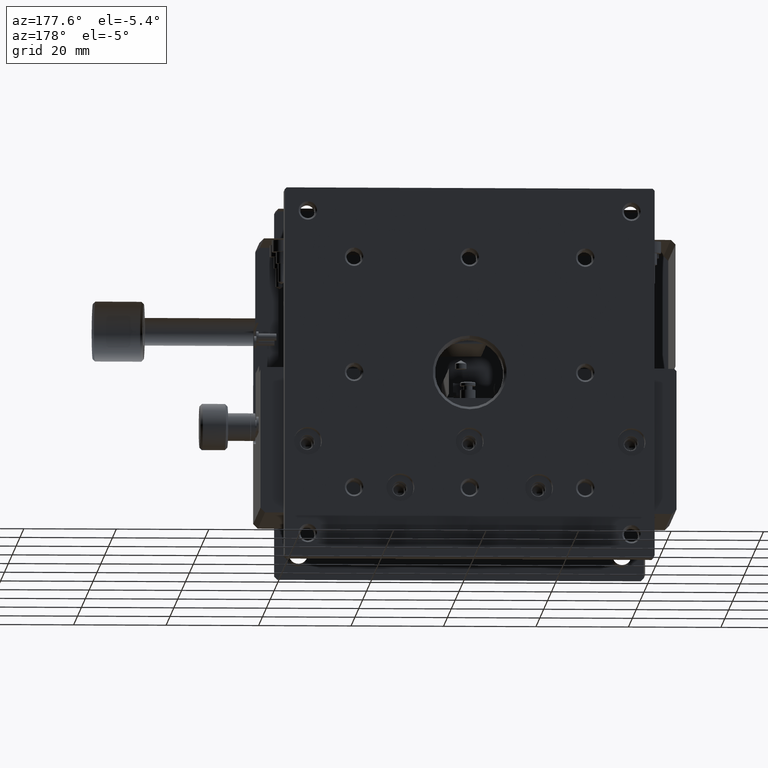
[diagram: clean part render]
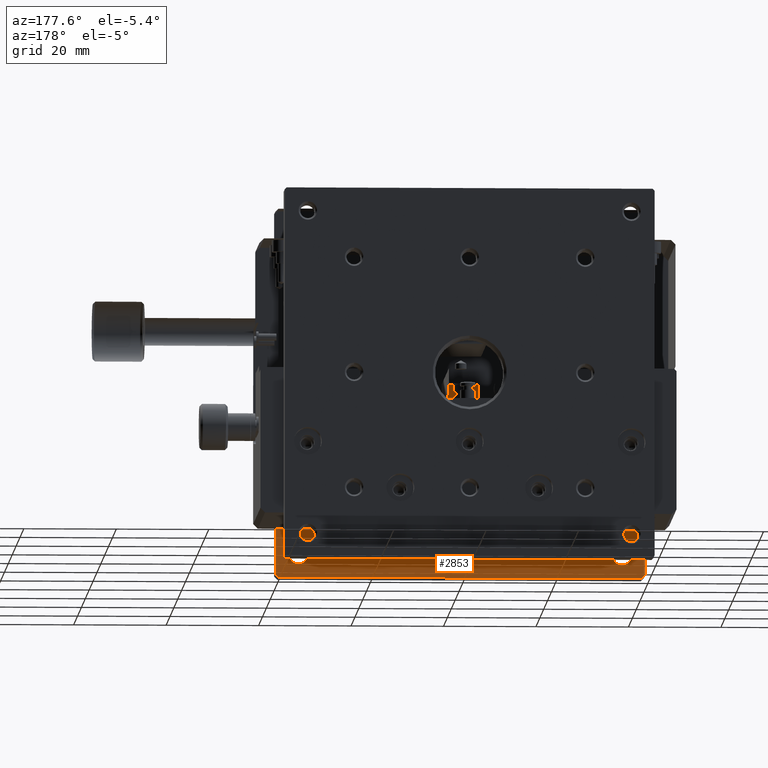
[diagram: same view with one face highlighted and labeled with its STEP entity id]
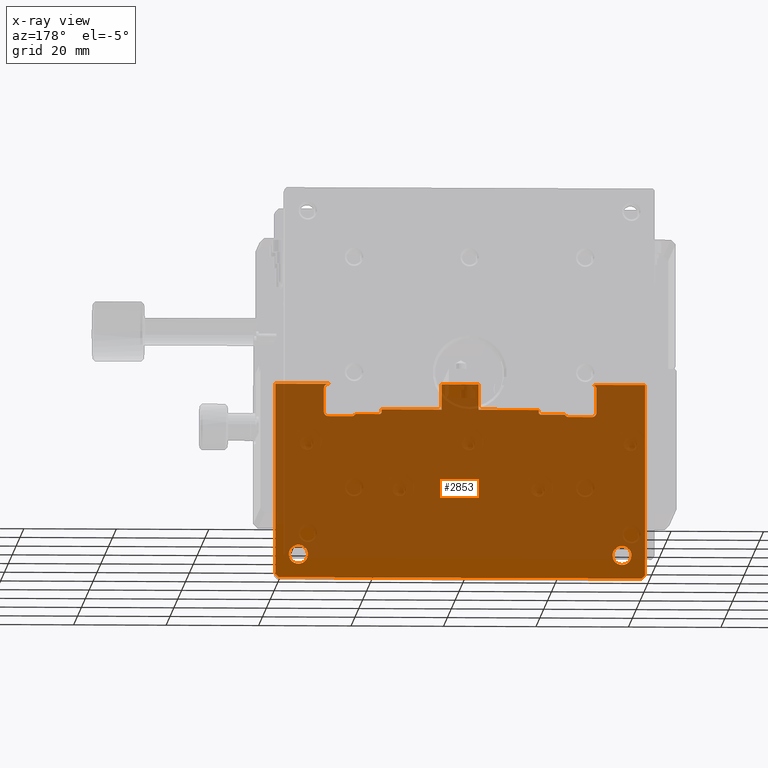
[diagram: x-ray of the same camera — body ghosted, the highlighted face saturated]
A machine part, auxiliary view. The second image highlights one B-rep face of the part: STEP entity #2853.
The next image is the same camera in x-ray: the body ghosted, the highlighted face saturated — about 88% of this face is hidden behind the body in this view.
In plain terms, the highlighted planar face has unit normal (0, 1, 0).
Its self-contained STEP definition (entity closure, byte-faithful):
#91 = CARTESIAN_POINT ( 'NONE',  ( 57.00000000000000000, 5.999999999999998224, -43.50000000000000711 ) ) ;
#101 = VECTOR ( 'NONE', #9984, 1000.000000000000000 ) ;
#146 = VERTEX_POINT ( 'NONE', #10381 ) ;
#200 = CARTESIAN_POINT ( 'NONE',  ( 57.29999999999999716, 5.999999999999998224, -44.49999999999990052 ) ) ;
#221 = DIRECTION ( 'NONE',  ( -0.000000000000000000, -1.000000000000000000, -0.000000000000000000 ) ) ;
#271 = VECTOR ( 'NONE', #11926, 1000.000000000000000 ) ;
#355 = ORIENTED_EDGE ( 'NONE', *, *, #5029, .F. ) ;
#358 = EDGE_CURVE ( 'NONE', #1120, #12012, #11424, .T. ) ;
#385 = CARTESIAN_POINT ( 'NONE',  ( 0.000000000000000000, 6.000000000000000000, -44.49999999999990052 ) ) ;
#395 = CARTESIAN_POINT ( 'NONE',  ( -1.897353801849632760E-16, 6.000000000000000000, -79.29000000000000625 ) ) ;
#409 = ORIENTED_EDGE ( 'NONE', *, *, #5274, .F. ) ;
#417 = VECTOR ( 'NONE', #1561, 1000.000000000000000 ) ;
#542 = LINE ( 'NONE', #9878, #417 ) ;
#556 = CARTESIAN_POINT ( 'NONE',  ( 0.000000000000000000, 6.000000000000000000, -38.00000000000000000 ) ) ;
#585 = DIRECTION ( 'NONE',  ( 0.000000000000000000, 0.000000000000000000, 1.000000000000000000 ) ) ;
#593 = DIRECTION ( 'NONE',  ( -0.000000000000000000, -0.000000000000000000, -1.000000000000000000 ) ) ;
#627 = VECTOR ( 'NONE', #10394, 1000.000000000000000 ) ;
#663 = DIRECTION ( 'NONE',  ( -0.000000000000000000, -0.000000000000000000, 1.000000000000000000 ) ) ;
#684 = CARTESIAN_POINT ( 'NONE',  ( 10.50000000000000000, 6.000000000000000000, 0.000000000000000000 ) ) ;
#718 = EDGE_CURVE ( 'NONE', #11463, #2818, #10713, .T. ) ;
#729 = LINE ( 'NONE', #2605, #10311 ) ;
#739 = ORIENTED_EDGE ( 'NONE', *, *, #7864, .F. ) ;
#770 = VERTEX_POINT ( 'NONE', #1884 ) ;
#865 = ORIENTED_EDGE ( 'NONE', *, *, #9838, .F. ) ;
#925 = DIRECTION ( 'NONE',  ( 0.000000000000000000, -1.000000000000000000, 0.000000000000000000 ) ) ;
#949 = VERTEX_POINT ( 'NONE', #91 ) ;
#957 = EDGE_CURVE ( 'NONE', #11557, #6539, #2119, .T. ) ;
#976 = LINE ( 'NONE', #3095, #1866 ) ;
#1120 = VERTEX_POINT ( 'NONE', #6941 ) ;
#1211 = VECTOR ( 'NONE', #6541, 1000.000000000000000 ) ;
#1254 = ORIENTED_EDGE ( 'NONE', *, *, #10223, .F. ) ;
#1383 = VECTOR ( 'NONE', #6995, 1000.000000000000000 ) ;
#1384 = CARTESIAN_POINT ( 'NONE',  ( 17.36602540378449788, 6.000000000000000000, -44.49999999999990052 ) ) ;
#1435 = ORIENTED_EDGE ( 'NONE', *, *, #5412, .F. ) ;
#1439 = FACE_BOUND ( 'NONE', #1449, .T. ) ;
#1449 = EDGE_LOOP ( 'NONE', ( #3501 ) ) ;
#1496 = CARTESIAN_POINT ( 'NONE',  ( 11.50000000000000000, 6.000000000000000000, -38.00000000000000000 ) ) ;
#1559 = CARTESIAN_POINT ( 'NONE',  ( 0.000000000000000000, 6.000000000000000000, -79.29000000000000625 ) ) ;
#1561 = DIRECTION ( 'NONE',  ( 1.000000000000000000, 0.000000000000000000, -0.000000000000000000 ) ) ;
#1570 = VERTEX_POINT ( 'NONE', #1384 ) ;
#1597 = AXIS2_PLACEMENT_3D ( 'NONE', #2343, #3510, #6195 ) ;
#1634 = DIRECTION ( 'NONE',  ( 1.000000000000000000, 0.000000000000000000, -0.000000000000000000 ) ) ;
#1641 = LINE ( 'NONE', #684, #1383 ) ;
#1669 = VERTEX_POINT ( 'NONE', #11049 ) ;
#1708 = CIRCLE ( 'NONE', #6570, 0.9999999999999870104 ) ;
#1715 = ORIENTED_EDGE ( 'NONE', *, *, #718, .F. ) ;
#1773 = VECTOR ( 'NONE', #6138, 1000.000000000000000 ) ;
#1788 = CARTESIAN_POINT ( 'NONE',  ( 68.50000000000000000, 6.000000000000000000, -45.00000000000000000 ) ) ;
#1822 = ORIENTED_EDGE ( 'NONE', *, *, #5594, .F. ) ;
#1866 = VECTOR ( 'NONE', #3037, 1000.000000000000000 ) ;
#1884 = CARTESIAN_POINT ( 'NONE',  ( 57.00000000000002842, 5.999999999999998224, -44.19999999999998153 ) ) ;
#1894 = CIRCLE ( 'NONE', #5222, 2.066999999999999282 ) ;
#1948 = CARTESIAN_POINT ( 'NONE',  ( 68.50000000000000000, 6.000000000000000000, -39.00000000000000000 ) ) ;
#1960 = VERTEX_POINT ( 'NONE', #2141 ) ;
#2112 = EDGE_CURVE ( 'NONE', #6045, #1960, #7086, .T. ) ;
#2119 = LINE ( 'NONE', #9536, #627 ) ;
#2141 = CARTESIAN_POINT ( 'NONE',  ( 44.00000000000000000, 5.999999999999998224, -43.50000000000000711 ) ) ;
#2160 = AXIS2_PLACEMENT_3D ( 'NONE', #10554, #3393, #11536 ) ;
#2343 = CARTESIAN_POINT ( 'NONE',  ( 16.50000000000000000, 6.000000000000000000, -44.00000000000000000 ) ) ;
#2361 = CARTESIAN_POINT ( 'NONE',  ( 75.00000000000000000, 6.000000000000000000, -77.06699999999999307 ) ) ;
#2382 = VECTOR ( 'NONE', #11552, 1000.000000000000000 ) ;
#2441 = VERTEX_POINT ( 'NONE', #8873 ) ;
#2499 = EDGE_CURVE ( 'NONE', #10087, #3604, #7832, .T. ) ;
#2603 = EDGE_CURVE ( 'NONE', #11819, #11463, #729, .T. ) ;
#2605 = CARTESIAN_POINT ( 'NONE',  ( 23.00000000000000000, 5.999999999999998224, -38.80000000000000426 ) ) ;
#2642 = DIRECTION ( 'NONE',  ( -0.7071067811865543451, 0.000000000000000000, 0.7071067811865408004 ) ) ;
#2674 = DIRECTION ( 'NONE',  ( 0.000000000000000000, 0.000000000000000000, -1.000000000000000000 ) ) ;
#2718 = CARTESIAN_POINT ( 'NONE',  ( 80.00000000000000000, 6.000000000000000000, -38.00000000000000000 ) ) ;
#2756 = CARTESIAN_POINT ( 'NONE',  ( 0.000000000000000000, 6.000000000000000000, -43.50000000000000711 ) ) ;
#2818 = VERTEX_POINT ( 'NONE', #7038 ) ;
#2853 = ADVANCED_FACE ( 'NONE', ( #6861, #1439, #7873 ), #10609, .F. ) ;
#2900 = DIRECTION ( 'NONE',  ( 0.000000000000000000, 0.000000000000000000, 1.000000000000000000 ) ) ;
#2918 = VERTEX_POINT ( 'NONE', #9134 ) ;
#2934 = ORIENTED_EDGE ( 'NONE', *, *, #358, .F. ) ;
#2988 = VECTOR ( 'NONE', #663, 1000.000000000000000 ) ;
#3016 = CARTESIAN_POINT ( 'NONE',  ( 57.00000000000000000, 5.999999999999998224, -44.20000000000000284 ) ) ;
#3037 = DIRECTION ( 'NONE',  ( 1.000000000000000000, 0.000000000000000000, -0.000000000000000000 ) ) ;
#3084 = CARTESIAN_POINT ( 'NONE',  ( 0.000000000000000000, 6.000000000000000000, -45.00000000000000000 ) ) ;
#3095 = CARTESIAN_POINT ( 'NONE',  ( 0.000000000000000000, 6.000000000000000000, -38.00000000000000000 ) ) ;
#3175 = DIRECTION ( 'NONE',  ( 1.000000000000000000, 0.000000000000000000, -0.000000000000000000 ) ) ;
#3317 = LINE ( 'NONE', #9935, #9655 ) ;
#3326 = VECTOR ( 'NONE', #5405, 1000.000000000000114 ) ;
#3393 = DIRECTION ( 'NONE',  ( 0.000000000000000000, 1.000000000000000000, 0.000000000000000000 ) ) ;
#3403 = CARTESIAN_POINT ( 'NONE',  ( 80.00000000000000000, 6.000000000000000000, -79.29000000000000625 ) ) ;
#3442 = ORIENTED_EDGE ( 'NONE', *, *, #4882, .F. ) ;
#3501 = ORIENTED_EDGE ( 'NONE', *, *, #10281, .F. ) ;
#3510 = DIRECTION ( 'NONE',  ( -0.000000000000000000, -1.000000000000000000, -0.000000000000000000 ) ) ;
#3552 = EDGE_CURVE ( 'NONE', #11409, #5529, #8243, .T. ) ;
#3563 = ORIENTED_EDGE ( 'NONE', *, *, #2603, .F. ) ;
#3604 = VERTEX_POINT ( 'NONE', #1496 ) ;
#3609 = VERTEX_POINT ( 'NONE', #11649 ) ;
#3620 = LINE ( 'NONE', #9304, #1211 ) ;
#3776 = DIRECTION ( 'NONE',  ( 0.000000000000000000, 0.000000000000000000, 1.000000000000000000 ) ) ;
#3835 = CARTESIAN_POINT ( 'NONE',  ( 63.50000000000000000, 6.000000000000000000, -45.00000000000000000 ) ) ;
#3870 = DIRECTION ( 'NONE',  ( 0.000000000000000000, 0.000000000000000000, -1.000000000000000000 ) ) ;
#3959 = CARTESIAN_POINT ( 'NONE',  ( 22.70000000000001350, 5.999999999999998224, -44.49999999999990763 ) ) ;
#4059 = DIRECTION ( 'NONE',  ( -0.000000000000000000, -1.000000000000000000, -0.000000000000000000 ) ) ;
#4107 = LINE ( 'NONE', #3016, #6073 ) ;
#4139 = EDGE_CURVE ( 'NONE', #6539, #11409, #9237, .T. ) ;
#4185 = CARTESIAN_POINT ( 'NONE',  ( 23.00000000000000000, 5.999999999999998224, -44.20000000000000284 ) ) ;
#4186 = EDGE_CURVE ( 'NONE', #2918, #7667, #976, .T. ) ;
#4369 = EDGE_CURVE ( 'NONE', #2818, #10646, #7946, .T. ) ;
#4474 = CARTESIAN_POINT ( 'NONE',  ( 0.7100000000000019629, 6.000000000000000000, -80.00000000000000000 ) ) ;
#4518 = CIRCLE ( 'NONE', #10723, 1.000000000000007772 ) ;
#4524 = CARTESIAN_POINT ( 'NONE',  ( 44.00000000000000000, 6.000000000000000000, 0.000000000000000000 ) ) ;
#4652 = DIRECTION ( 'NONE',  ( 1.000000000000000000, 0.000000000000000000, -0.000000000000000000 ) ) ;
#4701 = ORIENTED_EDGE ( 'NONE', *, *, #10574, .F. ) ;
#4809 = VECTOR ( 'NONE', #10432, 1000.000000000000000 ) ;
#4837 = VECTOR ( 'NONE', #4652, 1000.000000000000000 ) ;
#4867 = CARTESIAN_POINT ( 'NONE',  ( 57.29999999999999716, 5.999999999999998224, -44.49999999999990052 ) ) ;
#4882 = EDGE_CURVE ( 'NONE', #8591, #5690, #11777, .T. ) ;
#5029 = EDGE_CURVE ( 'NONE', #5529, #1669, #1708, .T. ) ;
#5111 = EDGE_LOOP ( 'NONE', ( #355, #10365, #7680, #5546, #7630, #9371, #1822, #8254, #10710, #5451, #1715, #3563, #739, #7373, #10794, #6153, #5256, #5297, #8131, #5744, #4701, #3442, #9843, #2934, #1435, #11019, #865, #1254 ) ) ;
#5222 = AXIS2_PLACEMENT_3D ( 'NONE', #7747, #11285, #11467 ) ;
#5256 = ORIENTED_EDGE ( 'NONE', *, *, #11911, .F. ) ;
#5265 = CARTESIAN_POINT ( 'NONE',  ( 11.50000000000000000, 6.000000000000000000, -39.00000000000000000 ) ) ;
#5274 = EDGE_CURVE ( 'NONE', #2441, #2441, #1894, .T. ) ;
#5297 = ORIENTED_EDGE ( 'NONE', *, *, #7408, .F. ) ;
#5405 = DIRECTION ( 'NONE',  ( -0.7071067811865474617, 0.000000000000000000, -0.7071067811865474617 ) ) ;
#5412 = EDGE_CURVE ( 'NONE', #7667, #1120, #3317, .T. ) ;
#5451 = ORIENTED_EDGE ( 'NONE', *, *, #4369, .F. ) ;
#5529 = VERTEX_POINT ( 'NONE', #1788 ) ;
#5546 = ORIENTED_EDGE ( 'NONE', *, *, #957, .F. ) ;
#5594 = EDGE_CURVE ( 'NONE', #1960, #949, #10228, .T. ) ;
#5690 = VERTEX_POINT ( 'NONE', #395 ) ;
#5744 = ORIENTED_EDGE ( 'NONE', *, *, #2499, .F. ) ;
#5804 = CARTESIAN_POINT ( 'NONE',  ( 0.7100000000000002975, 6.000000000000000000, -80.00000000000000000 ) ) ;
#5953 = VECTOR ( 'NONE', #8504, 1000.000000000000000 ) ;
#5978 = VECTOR ( 'NONE', #2642, 1000.000000000000114 ) ;
#5982 = DIRECTION ( 'NONE',  ( 1.000000000000000000, 0.000000000000000000, -0.000000000000000000 ) ) ;
#6036 = CARTESIAN_POINT ( 'NONE',  ( 0.000000000000000000, 6.000000000000000000, -38.00000000000000000 ) ) ;
#6045 = VERTEX_POINT ( 'NONE', #8562 ) ;
#6073 = VECTOR ( 'NONE', #3870, 1000.000000000000000 ) ;
#6103 = EDGE_CURVE ( 'NONE', #770, #11557, #10395, .T. ) ;
#6138 = DIRECTION ( 'NONE',  ( 0.7071067811865840991, 0.000000000000000000, 0.7071067811865110464 ) ) ;
#6153 = ORIENTED_EDGE ( 'NONE', *, *, #11935, .F. ) ;
#6195 = DIRECTION ( 'NONE',  ( 6.938893903907222067E-15, 0.000000000000000000, 1.000000000000000000 ) ) ;
#6278 = VECTOR ( 'NONE', #3175, 1000.000000000000000 ) ;
#6477 = AXIS2_PLACEMENT_3D ( 'NONE', #1948, #8331, #9242 ) ;
#6539 = VERTEX_POINT ( 'NONE', #11726 ) ;
#6541 = DIRECTION ( 'NONE',  ( -1.000000000000000000, -0.000000000000000000, 0.000000000000000000 ) ) ;
#6570 = AXIS2_PLACEMENT_3D ( 'NONE', #10233, #221, #11342 ) ;
#6591 = EDGE_CURVE ( 'NONE', #10646, #6045, #542, .T. ) ;
#6660 = EDGE_LOOP ( 'NONE', ( #409 ) ) ;
#6741 = CARTESIAN_POINT ( 'NONE',  ( 11.50000000000000000, 6.000000000000000000, -44.00000000000000000 ) ) ;
#6792 = VERTEX_POINT ( 'NONE', #9502 ) ;
#6813 = CARTESIAN_POINT ( 'NONE',  ( 36.00000000000000711, 6.000000000000000000, 0.000000000000000000 ) ) ;
#6861 = FACE_BOUND ( 'NONE', #6660, .T. ) ;
#6922 = CARTESIAN_POINT ( 'NONE',  ( 79.29000000000000625, 6.000000000000000000, -80.00000000000000000 ) ) ;
#6941 = CARTESIAN_POINT ( 'NONE',  ( 80.00000000000001421, 6.000000000000000000, -79.29000000000000625 ) ) ;
#6995 = DIRECTION ( 'NONE',  ( -0.000000000000000000, 0.000000000000000000, -1.000000000000000000 ) ) ;
#7038 = CARTESIAN_POINT ( 'NONE',  ( 36.00000000000000711, 5.999999999999998224, -43.50000000000000711 ) ) ;
#7086 = LINE ( 'NONE', #4524, #101 ) ;
#7119 = VERTEX_POINT ( 'NONE', #2361 ) ;
#7331 = CIRCLE ( 'NONE', #11991, 1.000000000000000888 ) ;
#7373 = ORIENTED_EDGE ( 'NONE', *, *, #10004, .F. ) ;
#7408 = EDGE_CURVE ( 'NONE', #146, #9358, #1641, .T. ) ;
#7440 = CIRCLE ( 'NONE', #6477, 1.000000000000007772 ) ;
#7480 = CARTESIAN_POINT ( 'NONE',  ( 23.00000000000000000, 5.999999999999998224, -43.50000000000000711 ) ) ;
#7630 = ORIENTED_EDGE ( 'NONE', *, *, #6103, .F. ) ;
#7667 = VERTEX_POINT ( 'NONE', #2718 ) ;
#7680 = ORIENTED_EDGE ( 'NONE', *, *, #4139, .F. ) ;
#7747 = CARTESIAN_POINT ( 'NONE',  ( 5.000000000000000000, 6.000000000000000000, -75.00000000000000000 ) ) ;
#7803 = VECTOR ( 'NONE', #1634, 1000.000000000000000 ) ;
#7832 = LINE ( 'NONE', #556, #2382 ) ;
#7864 = EDGE_CURVE ( 'NONE', #11526, #11819, #9025, .T. ) ;
#7873 = FACE_OUTER_BOUND ( 'NONE', #5111, .T. ) ;
#7912 = EDGE_CURVE ( 'NONE', #8704, #1570, #11503, .T. ) ;
#7946 = LINE ( 'NONE', #6813, #9449 ) ;
#8131 = ORIENTED_EDGE ( 'NONE', *, *, #9614, .F. ) ;
#8134 = EDGE_CURVE ( 'NONE', #949, #770, #4107, .T. ) ;
#8204 = AXIS2_PLACEMENT_3D ( 'NONE', #11005, #925, #2674 ) ;
#8243 = LINE ( 'NONE', #11904, #7803 ) ;
#8254 = ORIENTED_EDGE ( 'NONE', *, *, #2112, .F. ) ;
#8331 = DIRECTION ( 'NONE',  ( -0.000000000000000000, -1.000000000000000000, -0.000000000000000000 ) ) ;
#8463 = EDGE_CURVE ( 'NONE', #12012, #8591, #3620, .T. ) ;
#8504 = DIRECTION ( 'NONE',  ( 0.7071067811865799912, 0.000000000000000000, -0.7071067811865150432 ) ) ;
#8515 = CARTESIAN_POINT ( 'NONE',  ( 16.50000000000000000, 6.000000000000000000, -45.00000000000000000 ) ) ;
#8562 = CARTESIAN_POINT ( 'NONE',  ( 44.00000000000000000, 5.999999999999998224, -38.00000000000000000 ) ) ;
#8591 = VERTEX_POINT ( 'NONE', #5804 ) ;
#8617 = CARTESIAN_POINT ( 'NONE',  ( 63.50000000000000000, 6.000000000000000000, -44.00000000000000000 ) ) ;
#8687 = LINE ( 'NONE', #385, #6278 ) ;
#8704 = VERTEX_POINT ( 'NONE', #8515 ) ;
#8873 = CARTESIAN_POINT ( 'NONE',  ( 5.000000000000000000, 6.000000000000000000, -77.06699999999999307 ) ) ;
#9004 = CARTESIAN_POINT ( 'NONE',  ( 0.000000000000000000, 6.000000000000000000, -43.50000000000000711 ) ) ;
#9025 = LINE ( 'NONE', #4185, #1773 ) ;
#9089 = DIRECTION ( 'NONE',  ( 0.000000000000000000, 0.000000000000000000, 1.000000000000000000 ) ) ;
#9102 = CARTESIAN_POINT ( 'NONE',  ( 69.50000000000000000, 6.000000000000000000, 0.000000000000000000 ) ) ;
#9134 = CARTESIAN_POINT ( 'NONE',  ( 68.50000000000000000, 6.000000000000000000, -38.00000000000000000 ) ) ;
#9135 = LINE ( 'NONE', #1559, #2988 ) ;
#9175 = CIRCLE ( 'NONE', #8204, 2.066999999999999282 ) ;
#9204 = CARTESIAN_POINT ( 'NONE',  ( 36.00000000000000711, 5.999999999999998224, -38.00000000000000000 ) ) ;
#9237 = CIRCLE ( 'NONE', #10808, 1.000000000000000888 ) ;
#9242 = DIRECTION ( 'NONE',  ( 0.000000000000000000, 0.000000000000000000, 1.000000000000000000 ) ) ;
#9304 = CARTESIAN_POINT ( 'NONE',  ( 79.29000000000000625, 6.000000000000000000, -80.00000000000000000 ) ) ;
#9358 = VERTEX_POINT ( 'NONE', #10743 ) ;
#9371 = ORIENTED_EDGE ( 'NONE', *, *, #8134, .F. ) ;
#9449 = VECTOR ( 'NONE', #10503, 1000.000000000000000 ) ;
#9502 = CARTESIAN_POINT ( 'NONE',  ( 69.50000000000000000, 6.000000000000000000, -39.00000000000000000 ) ) ;
#9536 = CARTESIAN_POINT ( 'NONE',  ( 0.000000000000000000, 6.000000000000000000, -44.49999999999990052 ) ) ;
#9614 = EDGE_CURVE ( 'NONE', #3604, #146, #4518, .T. ) ;
#9655 = VECTOR ( 'NONE', #593, 1000.000000000000000 ) ;
#9838 = EDGE_CURVE ( 'NONE', #6792, #2918, #7440, .T. ) ;
#9843 = ORIENTED_EDGE ( 'NONE', *, *, #8463, .F. ) ;
#9878 = CARTESIAN_POINT ( 'NONE',  ( 0.000000000000000000, 6.000000000000000000, -38.00000000000000000 ) ) ;
#9935 = CARTESIAN_POINT ( 'NONE',  ( 80.00000000000000000, 6.000000000000000000, -0.7099999999999999645 ) ) ;
#9984 = DIRECTION ( 'NONE',  ( -0.000000000000000000, 0.000000000000000000, -1.000000000000000000 ) ) ;
#9985 = DIRECTION ( 'NONE',  ( -0.000000000000000000, -1.000000000000000000, -0.000000000000000000 ) ) ;
#10004 = EDGE_CURVE ( 'NONE', #1570, #11526, #8687, .T. ) ;
#10087 = VERTEX_POINT ( 'NONE', #6036 ) ;
#10223 = EDGE_CURVE ( 'NONE', #1669, #6792, #11983, .T. ) ;
#10228 = LINE ( 'NONE', #2756, #4837 ) ;
#10233 = CARTESIAN_POINT ( 'NONE',  ( 68.50000000000000000, 6.000000000000000000, -44.00000000000000000 ) ) ;
#10281 = EDGE_CURVE ( 'NONE', #7119, #7119, #9175, .T. ) ;
#10311 = VECTOR ( 'NONE', #9089, 1000.000000000000000 ) ;
#10365 = ORIENTED_EDGE ( 'NONE', *, *, #3552, .F. ) ;
#10381 = CARTESIAN_POINT ( 'NONE',  ( 10.50000000000000000, 6.000000000000000000, -39.00000000000000000 ) ) ;
#10387 = DIRECTION ( 'NONE',  ( -0.000000000000000000, -1.000000000000000000, -0.000000000000000000 ) ) ;
#10394 = DIRECTION ( 'NONE',  ( 1.000000000000000000, 0.000000000000000000, -0.000000000000000000 ) ) ;
#10395 = LINE ( 'NONE', #200, #5953 ) ;
#10432 = DIRECTION ( 'NONE',  ( 1.000000000000000000, 0.000000000000000000, -0.000000000000000000 ) ) ;
#10503 = DIRECTION ( 'NONE',  ( 0.000000000000000000, -0.000000000000000000, 1.000000000000000000 ) ) ;
#10554 = CARTESIAN_POINT ( 'NONE',  ( 0.000000000000000000, 6.000000000000000000, 0.000000000000000000 ) ) ;
#10556 = LINE ( 'NONE', #3084, #4809 ) ;
#10574 = EDGE_CURVE ( 'NONE', #5690, #10087, #9135, .T. ) ;
#10609 = PLANE ( 'NONE',  #2160 ) ;
#10646 = VERTEX_POINT ( 'NONE', #9204 ) ;
#10710 = ORIENTED_EDGE ( 'NONE', *, *, #6591, .F. ) ;
#10713 = LINE ( 'NONE', #9004, #11299 ) ;
#10723 = AXIS2_PLACEMENT_3D ( 'NONE', #5265, #9985, #585 ) ;
#10743 = CARTESIAN_POINT ( 'NONE',  ( 10.50000000000000000, 6.000000000000000000, -44.00000000000000000 ) ) ;
#10794 = ORIENTED_EDGE ( 'NONE', *, *, #7912, .F. ) ;
#10808 = AXIS2_PLACEMENT_3D ( 'NONE', #8617, #10387, #3776 ) ;
#11005 = CARTESIAN_POINT ( 'NONE',  ( 75.00000000000000000, 6.000000000000000000, -75.00000000000000000 ) ) ;
#11019 = ORIENTED_EDGE ( 'NONE', *, *, #4186, .F. ) ;
#11049 = CARTESIAN_POINT ( 'NONE',  ( 69.50000000000000000, 6.000000000000000000, -44.00000000000000000 ) ) ;
#11285 = DIRECTION ( 'NONE',  ( 0.000000000000000000, -1.000000000000000000, 0.000000000000000000 ) ) ;
#11299 = VECTOR ( 'NONE', #5982, 1000.000000000000000 ) ;
#11342 = DIRECTION ( 'NONE',  ( 0.000000000000000000, 0.000000000000000000, 1.000000000000000000 ) ) ;
#11409 = VERTEX_POINT ( 'NONE', #3835 ) ;
#11424 = LINE ( 'NONE', #3403, #3326 ) ;
#11463 = VERTEX_POINT ( 'NONE', #7480 ) ;
#11467 = DIRECTION ( 'NONE',  ( 0.000000000000000000, 0.000000000000000000, -1.000000000000000000 ) ) ;
#11503 = CIRCLE ( 'NONE', #1597, 1.000000000000000888 ) ;
#11526 = VERTEX_POINT ( 'NONE', #3959 ) ;
#11536 = DIRECTION ( 'NONE',  ( 0.000000000000000000, -0.000000000000000000, 1.000000000000000000 ) ) ;
#11552 = DIRECTION ( 'NONE',  ( 1.000000000000000000, 0.000000000000000000, -0.000000000000000000 ) ) ;
#11557 = VERTEX_POINT ( 'NONE', #4867 ) ;
#11649 = CARTESIAN_POINT ( 'NONE',  ( 11.50000000000000000, 6.000000000000000000, -45.00000000000000000 ) ) ;
#11726 = CARTESIAN_POINT ( 'NONE',  ( 62.63397459621550212, 6.000000000000000000, -44.49999999999990052 ) ) ;
#11777 = LINE ( 'NONE', #4474, #5978 ) ;
#11819 = VERTEX_POINT ( 'NONE', #11910 ) ;
#11904 = CARTESIAN_POINT ( 'NONE',  ( 0.000000000000000000, 6.000000000000000000, -45.00000000000000000 ) ) ;
#11910 = CARTESIAN_POINT ( 'NONE',  ( 23.00000000000000000, 5.999999999999998224, -44.20000000000000284 ) ) ;
#11911 = EDGE_CURVE ( 'NONE', #9358, #3609, #7331, .T. ) ;
#11926 = DIRECTION ( 'NONE',  ( 0.000000000000000000, -0.000000000000000000, 1.000000000000000000 ) ) ;
#11935 = EDGE_CURVE ( 'NONE', #3609, #8704, #10556, .T. ) ;
#11983 = LINE ( 'NONE', #9102, #271 ) ;
#11991 = AXIS2_PLACEMENT_3D ( 'NONE', #6741, #4059, #2900 ) ;
#12012 = VERTEX_POINT ( 'NONE', #6922 ) ;